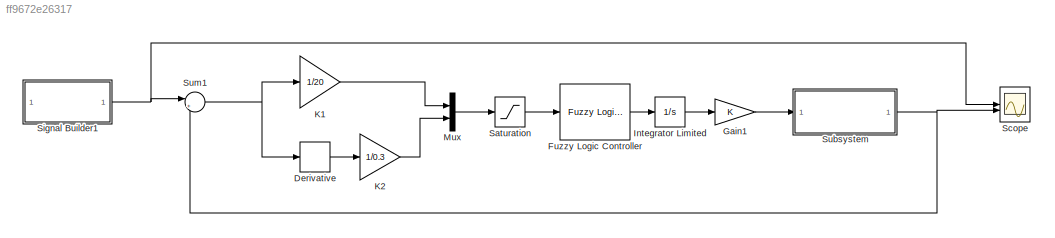
MODEL slx_ff9672e26317
KIND model
CONFIG AbsTol = auto
CONFIG EnableMultiTasking = on
CONFIG FixedStep = 0.01
CONFIG MaxStep = auto
CONFIG MinStep = auto
CONFIG RelTol = 1e-3
CONFIG SampleTimeConstraint = Unconstrained
CONFIG SolverName = VariableStepAuto
CONFIG StartTime = 0.0
CONFIG StopTime = 1000
BLOCK [Derivative] Derivative
BLOCK [Reference] Fuzzy Logic Controller  REF=fuzblock/Fuzzy Logic   (lib defined in mdl_858b3b3e7478)
Controller
  SourceBlock = fuzblock/Fuzzy Logic \nController
  SourceType = Fuzzy Inference System
BLOCK [Gain] Gain1
BLOCK [Integrator] Integrator Limited
  LimitOutput = on
  LowerSaturationLimit = 0
  UpperSaturationLimit = 1
BLOCK [Gain] K1 
  Gain = 1/20
BLOCK [Gain] K2 
  Gain = 1/0.3
BLOCK [Mux] Mux
  DisplayOption = bar
  Inputs = 2
BLOCK [Saturate] Saturation
  LowerLimit = -1
  UpperLimit = 1
BLOCK [Scope] Scope
  Floating = off
  NumInputPorts = 2
  ScopeSpecificationString = Simulink.scopes.TimeScopeBlockCfg('CurrentConfiguration', extmgr.ConfigurationSet(extmgr.Configuration('Core','General UI',true,'FigureColor',[1 1 1]),extmgr.Configuration('Core','Source UI',true),extmgr.Configuration('Sources','WiredSimulink',true),extmgr.Configuration('Visuals','Time Domain',true,'SerializedDisplays',{struct('MinYLimReal','-0.75625','MaxYLimReal','6.80625','YLabelReal','','MinYL...<+1632ch>
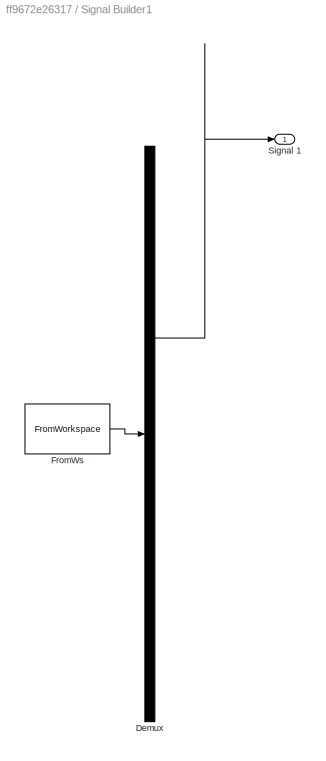
BLOCK [SubSystem] Signal Builder1
  ClipboardFcn = sigbuilder_block('clipboard');
  CloseFcn = sigbuilder_block('close');
  ContinueFcn = sigbuilder_block('continue');
  CopyFcn = sigbuilder_block('copy');
  DeleteFcn = sigbuilder_block('delete');
  LoadFcn = sigbuilder_block('load');
  MaskHideContents = on
  ModelCloseFcn = sigbuilder_block('modelClose');
  NameChangeFcn = sigbuilder_block('namechange');
  OpenFcn = sigbuilder_block('open',[370.8 132.6 550.8 360.6 ]);
  PauseFcn = sigbuilder_block('pause');
  PreSaveFcn = sigbuilder_block('preSave');
  StartFcn = sigbuilder_block('start');
  StopFcn = sigbuilder_block('stop');
  Tag = STV Subsys
BLOCK [Demux] Signal Builder1/Demux
  DisplayOption = none
  Outputs = 1
  Tag = STV Demux
BLOCK [FromWorkspace] Signal Builder1/FromWs
  Tag = STV FromWs
  VariableName = tuvar
BLOCK [Outport] Signal Builder1/Signal 1
  Tag = STV Outport
  VectorParamsAs1DForOutWhenUnconnected = off
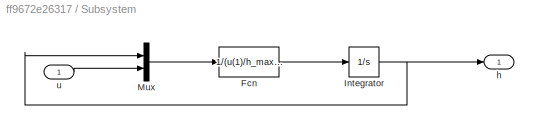
BLOCK [SubSystem] Subsystem
BLOCK [Fcn] Subsystem/Fcn
  Expr = 1/(u(1)/h_max*(A_max-A_min)+A_min)*(k*u(2)-CD*a*sqrt(2*g*u(1)))
BLOCK [Integrator] Subsystem/Integrator
  InitialCondition = h_int
BLOCK [Mux] Subsystem/Mux
  DisplayOption = bar
  Inputs = 2
BLOCK [Outport] Subsystem/h
  VectorParamsAs1DForOutWhenUnconnected = off
BLOCK [Inport] Subsystem/u
BLOCK [Sum] Sum1
  Inputs = |+-
LINE Derivative:1 -> K2 :1
LINE Fuzzy Logic Controller:1 -> Integrator Limited:1
LINE Gain1:1 -> Subsystem:1
LINE Integrator Limited:1 -> Gain1:1
LINE K1 :1 -> Mux:1
LINE K2 :1 -> Mux:2
LINE Mux:1 -> Saturation:1
LINE Saturation:1 -> Fuzzy Logic Controller:1
NET Signal Builder1:1 -> Scope:1, Sum1:1
LINE Subsystem/Fcn:1 -> Subsystem/Integrator:1
NET Subsystem/Integrator:1 -> Subsystem/Mux:1, Subsystem/h:1
LINE Subsystem/Mux:1 -> Subsystem/Fcn:1
LINE Subsystem/u:1 -> Subsystem/Mux:2
NET Subsystem:1 -> Scope:2, Sum1:2
NET Sum1:1 -> Derivative:1, K1 :1
note: NET lines group one-source signal fan-out (src -> all destinations, sorted); 1:1 wires keep LINE
